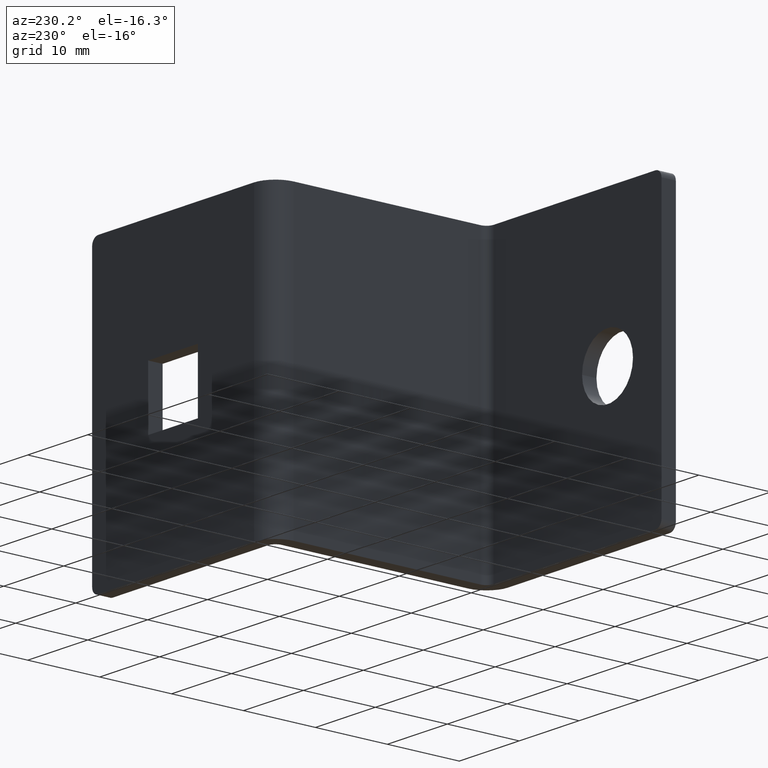
[diagram: clean part render]
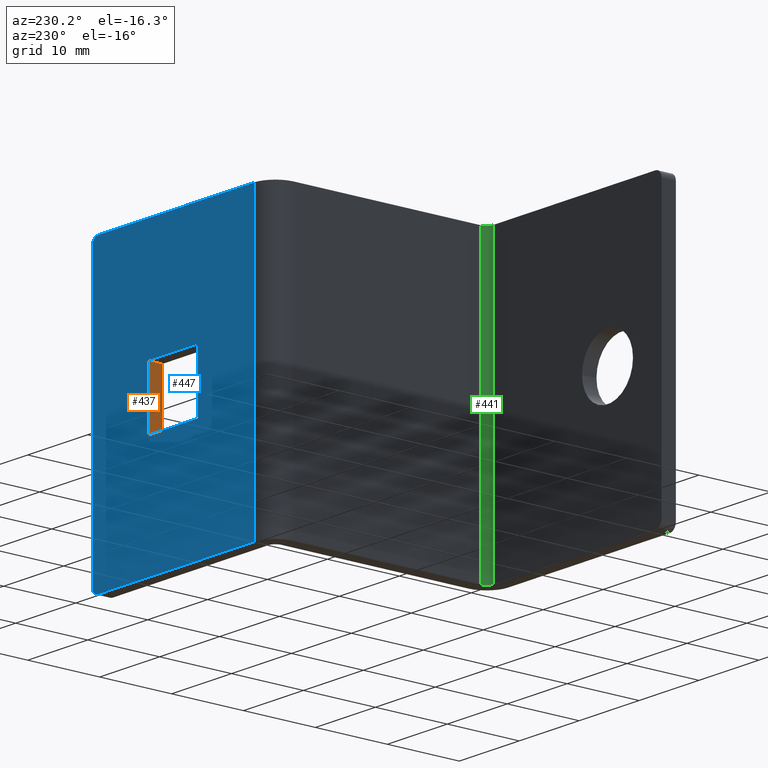
[diagram: same view with three faces highlighted in distinct colors, each labeled with its STEP entity id]
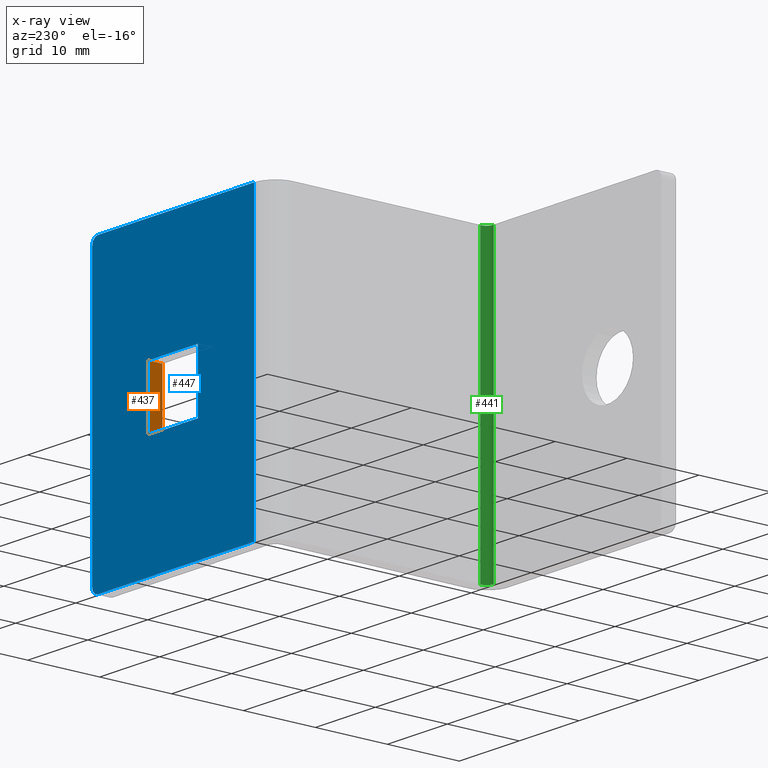
[diagram: x-ray of the same camera — body ghosted, the three highlighted faces saturated]
A machine part, auxiliary view with three faces highlighted in distinct colors.
The next image is the same camera in x-ray (body ghosted, the three faces saturated) — at least one of them is partly hidden behind the body in this view.
Their STEP definitions:

[orange] entity #437 — the highlighted planar face has unit normal (1, 0, 0).
#19=PLANE('',#472);
#48=LINE('',#684,#92);
#51=LINE('',#692,#95);
#52=LINE('',#694,#96);
#53=LINE('',#695,#97);
#92=VECTOR('',#549,8.3);
#95=VECTOR('',#558,2.00000000000004);
#96=VECTOR('',#559,8.3);
#97=VECTOR('',#560,2.00000000000004);
#131=FACE_OUTER_BOUND('',#157,.T.);
#157=EDGE_LOOP('',(#338,#339,#340,#341));
#214=VERTEX_POINT('',#681);
#215=VERTEX_POINT('',#683);
#217=VERTEX_POINT('',#691);
#218=VERTEX_POINT('',#693);
#261=EDGE_CURVE('',#214,#215,#48,.T.);
#265=EDGE_CURVE('',#217,#214,#51,.T.);
#266=EDGE_CURVE('',#218,#217,#52,.T.);
#267=EDGE_CURVE('',#218,#215,#53,.T.);
#338=ORIENTED_EDGE('',*,*,#261,.F.);
#339=ORIENTED_EDGE('',*,*,#265,.F.);
#340=ORIENTED_EDGE('',*,*,#266,.F.);
#341=ORIENTED_EDGE('',*,*,#267,.T.);
#437=ADVANCED_FACE('',(#131),#19,.F.);
#472=AXIS2_PLACEMENT_3D('',#690,#556,#557);
#549=DIRECTION('',(2.67523620391604E-16,0.,-1.));
#556=DIRECTION('center_axis',(1.,2.22044604925031E-15,2.67523620391604E-16));
#557=DIRECTION('ref_axis',(0.,0.,1.));
#558=DIRECTION('',(2.22044604925031E-15,-1.,0.));
#559=DIRECTION('',(-2.67523620391604E-16,-5.7026089534049E-31,1.));
#560=DIRECTION('',(2.22044604925031E-15,-1.,0.));
#681=CARTESIAN_POINT('',(60.6625837680259,65.7006300239079,24.15));
#683=CARTESIAN_POINT('',(60.6625837680259,65.7006300239079,15.85));
#684=CARTESIAN_POINT('',(60.6625837680259,65.7006300239079,7.925));
#690=CARTESIAN_POINT('Origin',(60.6625837680259,67.700630023908,15.85));
#691=CARTESIAN_POINT('',(60.6625837680259,67.700630023908,24.15));
#692=CARTESIAN_POINT('',(60.6625837680259,67.700630023908,24.15));
#693=CARTESIAN_POINT('',(60.6625837680259,67.700630023908,15.85));
#694=CARTESIAN_POINT('',(60.6625837680259,67.700630023908,7.925));
#695=CARTESIAN_POINT('',(60.6625837680259,67.700630023908,15.85));

[blue] entity #447 — the highlighted planar face has unit normal (-0, 1, 0).
#25=PLANE('',#490);
#42=LINE('',#669,#86);
#52=LINE('',#694,#96);
#54=LINE('',#698,#98);
#56=LINE('',#702,#100);
#58=LINE('',#705,#102);
#64=LINE('',#726,#108);
#69=LINE('',#743,#113);
#70=LINE('',#744,#114);
#86=VECTOR('',#539,38.);
#96=VECTOR('',#559,8.3);
#98=VECTOR('',#563,8.30000000000001);
#100=VECTOR('',#567,8.3);
#102=VECTOR('',#571,8.3);
#108=VECTOR('',#591,40.);
#113=VECTOR('',#612,26.);
#114=VECTOR('',#613,26.);
#120=FACE_BOUND('',#168,.T.);
#141=FACE_OUTER_BOUND('',#167,.T.);
#167=EDGE_LOOP('',(#378,#379,#380,#381,#382,#383));
#168=EDGE_LOOP('',(#384,#385,#386,#387));
#179=CIRCLE('',#465,1.);
#182=CIRCLE('',#471,1.);
#203=VERTEX_POINT('',#656);
#204=VERTEX_POINT('',#657);
#208=VERTEX_POINT('',#667);
#216=VERTEX_POINT('',#687);
#217=VERTEX_POINT('',#691);
#218=VERTEX_POINT('',#693);
#219=VERTEX_POINT('',#697);
#220=VERTEX_POINT('',#701);
#227=VERTEX_POINT('',#722);
#228=VERTEX_POINT('',#724);
#248=EDGE_CURVE('',#203,#204,#179,.T.);
#254=EDGE_CURVE('',#208,#203,#42,.T.);
#263=EDGE_CURVE('',#216,#208,#182,.T.);
#266=EDGE_CURVE('',#218,#217,#52,.T.);
#268=EDGE_CURVE('',#219,#218,#54,.T.);
#270=EDGE_CURVE('',#220,#219,#56,.T.);
#272=EDGE_CURVE('',#217,#220,#58,.T.);
#282=EDGE_CURVE('',#227,#228,#64,.T.);
#291=EDGE_CURVE('',#216,#227,#69,.T.);
#292=EDGE_CURVE('',#204,#228,#70,.T.);
#378=ORIENTED_EDGE('',*,*,#248,.F.);
#379=ORIENTED_EDGE('',*,*,#254,.F.);
#380=ORIENTED_EDGE('',*,*,#263,.F.);
#381=ORIENTED_EDGE('',*,*,#291,.T.);
#382=ORIENTED_EDGE('',*,*,#282,.T.);
#383=ORIENTED_EDGE('',*,*,#292,.F.);
#384=ORIENTED_EDGE('',*,*,#270,.T.);
#385=ORIENTED_EDGE('',*,*,#268,.T.);
#386=ORIENTED_EDGE('',*,*,#266,.T.);
#387=ORIENTED_EDGE('',*,*,#272,.T.);
#447=ADVANCED_FACE('',(#141,#120),#25,.T.);
#465=AXIS2_PLACEMENT_3D('',#658,#529,#530);
#471=AXIS2_PLACEMENT_3D('',#688,#553,#554);
#490=AXIS2_PLACEMENT_3D('',#742,#610,#611);
#529=DIRECTION('center_axis',(2.1316282072803E-15,-1.,0.));
#530=DIRECTION('ref_axis',(0.707106781186544,0.,0.707106781186551));
#539=DIRECTION('',(0.,0.,1.));
#553=DIRECTION('center_axis',(2.1316282072803E-15,-1.,0.));
#554=DIRECTION('ref_axis',(0.707106781186546,0.,-0.707106781186549));
#559=DIRECTION('',(-2.67523620391604E-16,-5.7026089534049E-31,1.));
#563=DIRECTION('',(1.,2.1316282072803E-15,0.));
#567=DIRECTION('',(0.,0.,-1.));
#571=DIRECTION('',(-1.,-2.1316282072803E-15,0.));
#591=DIRECTION('',(0.,0.,1.));
#610=DIRECTION('center_axis',(-2.1316282072803E-15,1.,0.));
#611=DIRECTION('ref_axis',(-1.,-1.4210854715202E-15,0.));
#612=DIRECTION('',(-1.,-2.1316282072803E-15,0.));
#613=DIRECTION('',(-1.,0.,0.));
#656=CARTESIAN_POINT('',(70.0125837680259,67.700630023908,39.));
#657=CARTESIAN_POINT('',(69.0125837680259,67.700630023908,40.));
#658=CARTESIAN_POINT('Origin',(69.0125837680259,67.700630023908,39.));
#667=CARTESIAN_POINT('',(70.0125837680259,67.700630023908,1.));
#669=CARTESIAN_POINT('',(70.0125837680259,67.700630023908,0.));
#687=CARTESIAN_POINT('',(69.0125837680259,67.700630023908,0.));
#688=CARTESIAN_POINT('Origin',(69.0125837680259,67.700630023908,1.));
#691=CARTESIAN_POINT('',(60.6625837680259,67.700630023908,24.15));
#693=CARTESIAN_POINT('',(60.6625837680259,67.700630023908,15.85));
#694=CARTESIAN_POINT('',(60.6625837680259,67.700630023908,7.925));
#697=CARTESIAN_POINT('',(52.3625837680259,67.700630023908,15.85));
#698=CARTESIAN_POINT('',(56.5125837680397,67.700630023908,15.85));
#701=CARTESIAN_POINT('',(52.3625837680259,67.700630023908,24.15));
#702=CARTESIAN_POINT('',(52.3625837680259,67.700630023908,12.075));
#705=CARTESIAN_POINT('',(60.6625837680397,67.700630023908,24.15));
#722=CARTESIAN_POINT('',(43.0125837680259,67.7006300239079,0.));
#724=CARTESIAN_POINT('',(43.0125837680259,67.7006300239079,40.));
#726=CARTESIAN_POINT('',(43.0125837680259,67.7006300239079,0.));
#742=CARTESIAN_POINT('Origin',(60.6625837680534,67.700630023908,0.));
#743=CARTESIAN_POINT('',(68.0125837680259,67.700630023908,0.));
#744=CARTESIAN_POINT('',(70.0125837680259,67.700630023908,40.));

[green] entity #441 — the highlighted cylindrical surface (edge-blend (fillet) strip) has radius 1 mm, axis along (0, 0, 1).
#59=LINE('',#711,#103);
#60=LINE('',#714,#104);
#103=VECTOR('',#576,40.);
#104=VECTOR('',#579,40.);
#135=FACE_OUTER_BOUND('',#161,.T.);
#161=EDGE_LOOP('',(#354,#355,#356,#357));
#183=CIRCLE('',#477,1.00000000000001);
#184=CIRCLE('',#478,1.00000000000001);
#221=VERTEX_POINT('',#707);
#222=VERTEX_POINT('',#708);
#223=VERTEX_POINT('',#710);
#224=VERTEX_POINT('',#712);
#273=EDGE_CURVE('',#221,#222,#183,.T.);
#274=EDGE_CURVE('',#222,#223,#59,.T.);
#275=EDGE_CURVE('',#224,#223,#184,.T.);
#276=EDGE_CURVE('',#221,#224,#60,.T.);
#354=ORIENTED_EDGE('',*,*,#273,.T.);
#355=ORIENTED_EDGE('',*,*,#274,.T.);
#356=ORIENTED_EDGE('',*,*,#275,.F.);
#357=ORIENTED_EDGE('',*,*,#276,.F.);
#424=CYLINDRICAL_SURFACE('',#476,1.00000000000001);
#441=ADVANCED_FACE('',(#135),#424,.F.);
#476=AXIS2_PLACEMENT_3D('',#706,#572,#573);
#477=AXIS2_PLACEMENT_3D('',#709,#574,#575);
#478=AXIS2_PLACEMENT_3D('',#713,#577,#578);
#572=DIRECTION('center_axis',(0.,0.,1.));
#573=DIRECTION('ref_axis',(-1.33226762955018E-14,1.,0.));
#574=DIRECTION('center_axis',(0.,0.,-1.));
#575=DIRECTION('ref_axis',(-1.33226762955018E-14,1.,0.));
#576=DIRECTION('',(0.,0.,1.));
#577=DIRECTION('center_axis',(0.,0.,-1.));
#578=DIRECTION('ref_axis',(-1.33226762955018E-14,1.,0.));
#579=DIRECTION('',(0.,0.,1.));
#706=CARTESIAN_POINT('Origin',(39.0125837680259,38.7006300239079,0.));
#707=CARTESIAN_POINT('',(40.0125837680259,38.7006300239079,0.));
#708=CARTESIAN_POINT('',(39.0125837680259,37.7006300239079,0.));
#709=CARTESIAN_POINT('Origin',(39.0125837680259,38.7006300239079,0.));
#710=CARTESIAN_POINT('',(39.0125837680259,37.7006300239079,40.));
#711=CARTESIAN_POINT('',(39.0125837680259,37.7006300239079,0.));
#712=CARTESIAN_POINT('',(40.0125837680259,38.7006300239079,40.));
#713=CARTESIAN_POINT('Origin',(39.0125837680259,38.7006300239079,40.));
#714=CARTESIAN_POINT('',(40.0125837680259,38.7006300239079,0.));